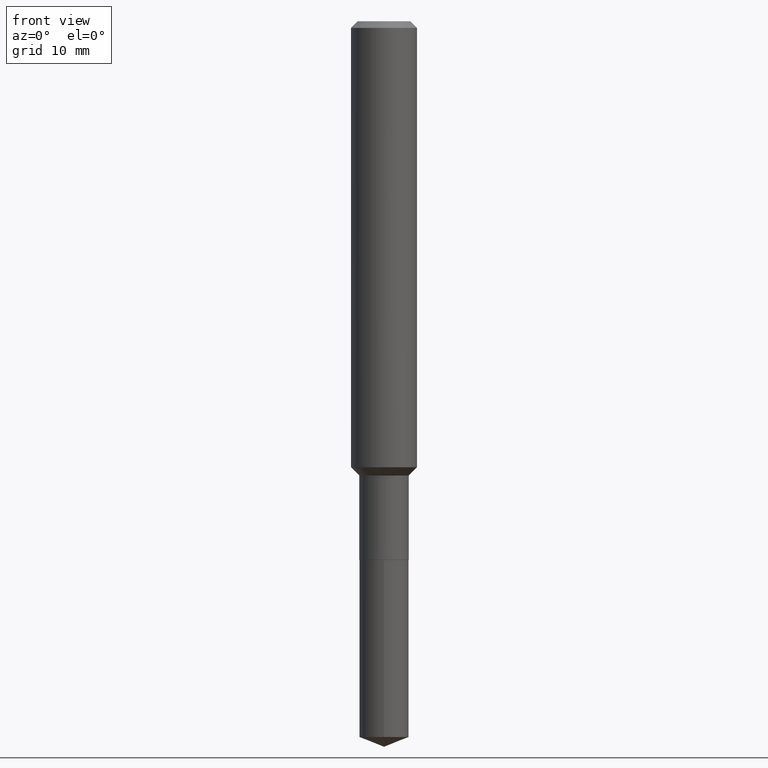
[diagram: clean part render]
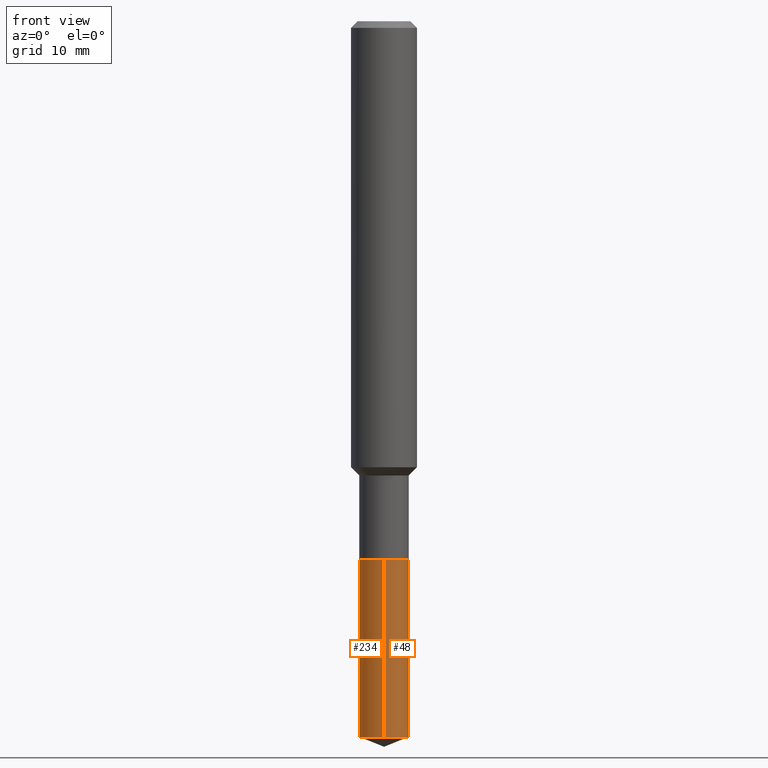
[diagram: same view with one multi-face feature highlighted, each face labeled with its STEP entity id]
A machine part, front view. The highlighted faces form ONE feature: a constant-radius fillet chain: 2 tangent blend faces with common blend radius 2.2504 mm. The faces share edges in the B-rep.
Their STEP definitions:
[1] entity #48 (Cylinder):
#6 = LINE ( 'NONE', #161, #358 ) ;
#13 = ORIENTED_EDGE ( 'NONE', *, *, #354, .F. ) ;
#48 = ADVANCED_FACE ( 'NONE', ( #179 ), #330, .T. ) ;
#72 = CIRCLE ( 'NONE', #302, 0.08859999999999999820 ) ;
#73 = AXIS2_PLACEMENT_3D ( 'NONE', #273, #113, #382 ) ;
#76 = DIRECTION ( 'NONE',  ( -2.445600324468022531E-29, 3.491292997176496654E-15, 1.000000000000000000 ) ) ;
#85 = CARTESIAN_POINT ( 'NONE',  ( -6.186904932429559170E-16, -0.08860000000000672893, -1.929099999999999593 ) ) ;
#97 = DIRECTION ( 'NONE',  ( -6.982962677686265133E-15, -1.000000000000000000, 6.166699759964476650E-15 ) ) ;
#113 = DIRECTION ( 'NONE',  ( -2.445600324468022812E-29, 3.491292997176496654E-15, 1.000000000000000000 ) ) ;
#114 = VERTEX_POINT ( 'NONE', #397 ) ;
#116 = ORIENTED_EDGE ( 'NONE', *, *, #120, .T. ) ;
#120 = EDGE_CURVE ( 'NONE', #165, #464, #72, .T. ) ;
#139 = DIRECTION ( 'NONE',  ( -2.445600324468022812E-29, 3.491292997176496654E-15, 1.000000000000000000 ) ) ;
#158 = DIRECTION ( 'NONE',  ( -2.445600324468022531E-29, 3.491292997176496654E-15, 1.000000000000000000 ) ) ;
#161 = CARTESIAN_POINT ( 'NONE',  ( 6.295408638834957877E-16, 0.08859999999999326747, -1.929100000000000259 ) ) ;
#162 = ORIENTED_EDGE ( 'NONE', *, *, #442, .F. ) ;
#165 = VERTEX_POINT ( 'NONE', #284 ) ;
#170 = ORIENTED_EDGE ( 'NONE', *, *, #389, .T. ) ;
#175 = VECTOR ( 'NONE', #76, 39.37007874015748143 ) ;
#177 = DIRECTION ( 'NONE',  ( -2.445600324468022812E-29, 3.491292997176496654E-15, 1.000000000000000000 ) ) ;
#179 = FACE_OUTER_BOUND ( 'NONE', #459, .T. ) ;
#191 = CARTESIAN_POINT ( 'NONE',  ( 6.295408638835111705E-16, 0.08859999999999103315, -2.563499531860516711 ) ) ;
#217 = CIRCLE ( 'NONE', #73, 0.08859999999999999820 ) ;
#255 = DIRECTION ( 'NONE',  ( -6.982962677686265133E-15, -1.000000000000000000, 3.083349879982238325E-15 ) ) ;
#273 = CARTESIAN_POINT ( 'NONE',  ( 4.717553874011746679E-29, -6.735416650762311704E-15, -1.929099999999999815 ) ) ;
#284 = CARTESIAN_POINT ( 'NONE',  ( -6.186904932429402384E-16, -0.08860000000000890774, -2.563499531860515823 ) ) ;
#292 = CARTESIAN_POINT ( 'NONE',  ( 6.269041574972186787E-29, -8.950291293758979308E-15, -2.563499531860516267 ) ) ;
#302 = AXIS2_PLACEMENT_3D ( 'NONE', #292, #139, #97 ) ;
#322 = CARTESIAN_POINT ( 'NONE',  ( 4.717553874011746679E-29, -6.735416650762311704E-15, -1.929099999999999815 ) ) ;
#330 = CYLINDRICAL_SURFACE ( 'NONE', #345, 0.08859999999999999820 ) ;
#345 = AXIS2_PLACEMENT_3D ( 'NONE', #322, #177, #255 ) ;
#354 = EDGE_CURVE ( 'NONE', #114, #359, #217, .T. ) ;
#358 = VECTOR ( 'NONE', #158, 39.37007874015748143 ) ;
#359 = VERTEX_POINT ( 'NONE', #423 ) ;
#382 = DIRECTION ( 'NONE',  ( -6.982962677686265133E-15, -1.000000000000000000, 3.083349879982238325E-15 ) ) ;
#389 = EDGE_CURVE ( 'NONE', #464, #359, #6, .T. ) ;
#397 = CARTESIAN_POINT ( 'NONE',  ( -6.186904932429559170E-16, -0.08860000000000672893, -1.929099999999999593 ) ) ;
#423 = CARTESIAN_POINT ( 'NONE',  ( 6.295408638835114663E-16, 0.08859999999999326747, -1.929100000000000259 ) ) ;
#442 = EDGE_CURVE ( 'NONE', #165, #114, #466, .T. ) ;
#459 = EDGE_LOOP ( 'NONE', ( #116, #170, #13, #162 ) ) ;
#464 = VERTEX_POINT ( 'NONE', #191 ) ;
#466 = LINE ( 'NONE', #85, #175 ) ;
[2] entity #234 (Cylinder):
#6 = LINE ( 'NONE', #161, #358 ) ;
#32 = CYLINDRICAL_SURFACE ( 'NONE', #437, 0.08859999999999999820 ) ;
#40 = DIRECTION ( 'NONE',  ( -2.445600324468022812E-29, 3.491292997176496654E-15, 1.000000000000000000 ) ) ;
#50 = EDGE_LOOP ( 'NONE', ( #77, #201, #361, #383 ) ) ;
#76 = DIRECTION ( 'NONE',  ( -2.445600324468022531E-29, 3.491292997176496654E-15, 1.000000000000000000 ) ) ;
#77 = ORIENTED_EDGE ( 'NONE', *, *, #389, .F. ) ;
#78 = DIRECTION ( 'NONE',  ( -6.982962677686265133E-15, -1.000000000000000000, 3.083349879982238325E-15 ) ) ;
#85 = CARTESIAN_POINT ( 'NONE',  ( -6.186904932429559170E-16, -0.08860000000000672893, -1.929099999999999593 ) ) ;
#106 = FACE_OUTER_BOUND ( 'NONE', #50, .T. ) ;
#114 = VERTEX_POINT ( 'NONE', #397 ) ;
#121 = CARTESIAN_POINT ( 'NONE',  ( 4.717553874011746679E-29, -6.735416650762311704E-15, -1.929099999999999815 ) ) ;
#142 = CARTESIAN_POINT ( 'NONE',  ( 4.717553874011746679E-29, -6.735416650762311704E-15, -1.929099999999999815 ) ) ;
#158 = DIRECTION ( 'NONE',  ( -2.445600324468022531E-29, 3.491292997176496654E-15, 1.000000000000000000 ) ) ;
#161 = CARTESIAN_POINT ( 'NONE',  ( 6.295408638834957877E-16, 0.08859999999999326747, -1.929100000000000259 ) ) ;
#165 = VERTEX_POINT ( 'NONE', #284 ) ;
#175 = VECTOR ( 'NONE', #76, 39.37007874015748143 ) ;
#187 = DIRECTION ( 'NONE',  ( -6.982962677686265133E-15, -1.000000000000000000, 3.083349879982238325E-15 ) ) ;
#191 = CARTESIAN_POINT ( 'NONE',  ( 6.295408638835111705E-16, 0.08859999999999103315, -2.563499531860516711 ) ) ;
#201 = ORIENTED_EDGE ( 'NONE', *, *, #299, .T. ) ;
#202 = CIRCLE ( 'NONE', #267, 0.08859999999999999820 ) ;
#225 = CIRCLE ( 'NONE', #404, 0.08859999999999999820 ) ;
#227 = DIRECTION ( 'NONE',  ( -6.982962677686265133E-15, -1.000000000000000000, 6.166699759964476650E-15 ) ) ;
#234 = ADVANCED_FACE ( 'NONE', ( #106 ), #32, .T. ) ;
#267 = AXIS2_PLACEMENT_3D ( 'NONE', #121, #40, #78 ) ;
#284 = CARTESIAN_POINT ( 'NONE',  ( -6.186904932429402384E-16, -0.08860000000000890774, -2.563499531860515823 ) ) ;
#299 = EDGE_CURVE ( 'NONE', #464, #165, #225, .T. ) ;
#358 = VECTOR ( 'NONE', #158, 39.37007874015748143 ) ;
#359 = VERTEX_POINT ( 'NONE', #423 ) ;
#361 = ORIENTED_EDGE ( 'NONE', *, *, #442, .T. ) ;
#383 = ORIENTED_EDGE ( 'NONE', *, *, #396, .F. ) ;
#389 = EDGE_CURVE ( 'NONE', #464, #359, #6, .T. ) ;
#396 = EDGE_CURVE ( 'NONE', #359, #114, #202, .T. ) ;
#397 = CARTESIAN_POINT ( 'NONE',  ( -6.186904932429559170E-16, -0.08860000000000672893, -1.929099999999999593 ) ) ;
#404 = AXIS2_PLACEMENT_3D ( 'NONE', #450, #416, #227 ) ;
#416 = DIRECTION ( 'NONE',  ( -2.445600324468022812E-29, 3.491292997176496654E-15, 1.000000000000000000 ) ) ;
#423 = CARTESIAN_POINT ( 'NONE',  ( 6.295408638835114663E-16, 0.08859999999999326747, -1.929100000000000259 ) ) ;
#437 = AXIS2_PLACEMENT_3D ( 'NONE', #142, #451, #187 ) ;
#442 = EDGE_CURVE ( 'NONE', #165, #114, #466, .T. ) ;
#450 = CARTESIAN_POINT ( 'NONE',  ( 6.269041574972186787E-29, -8.950291293758979308E-15, -2.563499531860516267 ) ) ;
#451 = DIRECTION ( 'NONE',  ( -2.445600324468022812E-29, 3.491292997176496654E-15, 1.000000000000000000 ) ) ;
#464 = VERTEX_POINT ( 'NONE', #191 ) ;
#466 = LINE ( 'NONE', #85, #175 ) ;